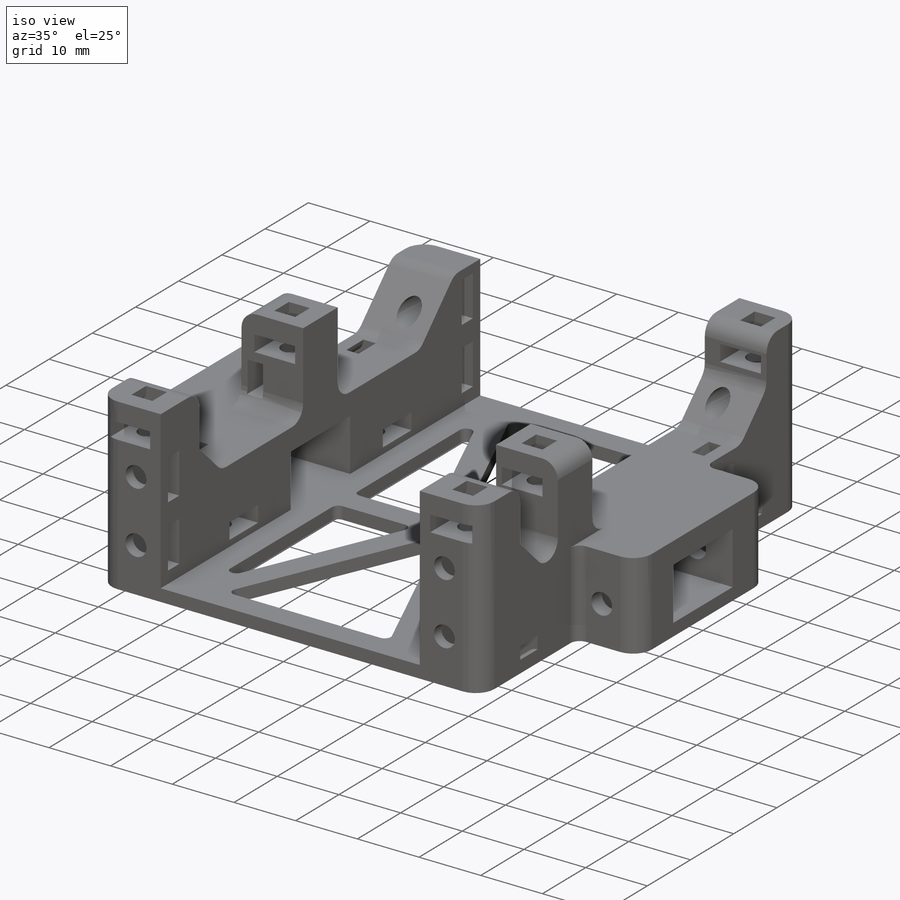
[diagram: iso view]
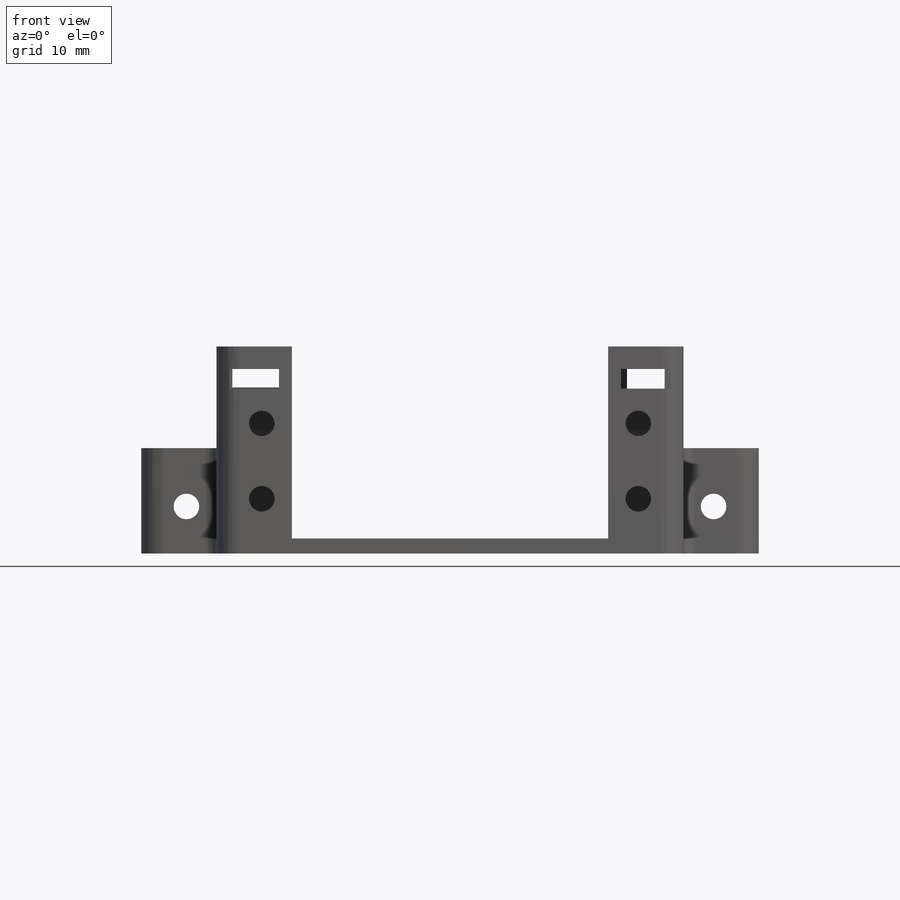
[diagram: front view]
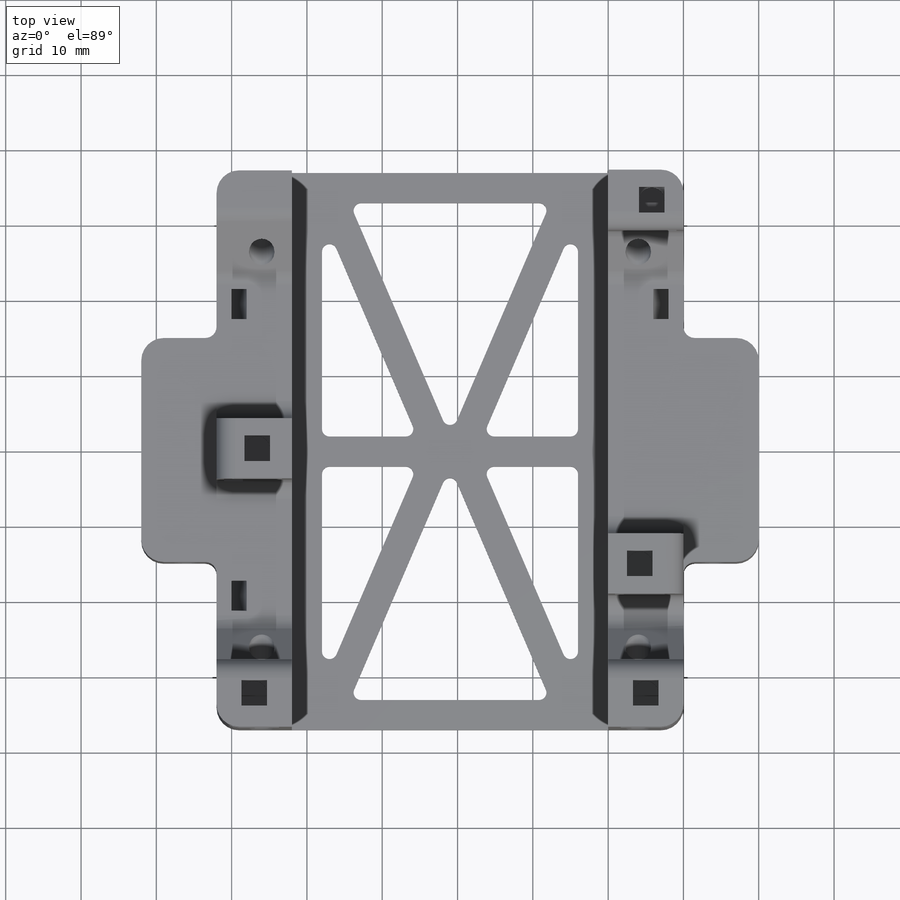
[diagram: top view]
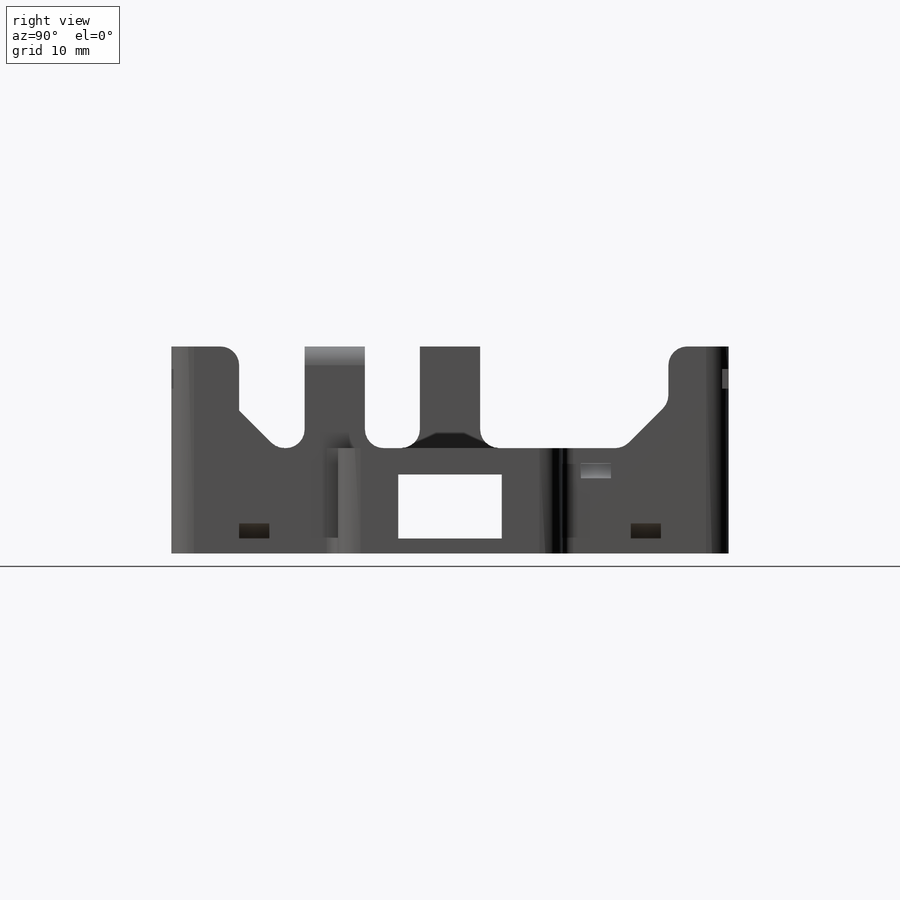
[diagram: right view]
SOLIDWORKS PART (.sldprt)
format: sldprt  version: not decoded by parser v0  size: 1,209,344 bytes
history: native  units: mm
features: sketch x29, cut_extrude x18, extrude x8, mirror x8, fillet x4, cut_revolve x3, plane x2, material x1, chamfer x1 (+11 scaffold rows collapsed)
feature tree (85):
  scaffold x11  (default folders/planes/origin — collapsed)
  material  "Material <not specified>"
  sketch  "Sketch1"  dims[D1=74.0mm D2=75.0mm]
  extrude  "Boss-Extrude1"  Depth=4mm
  plane  "Plane1"  Offset=20mm
  plane  "Plane2"  Offset=21mm
  sketch  "Sketch2"  dims[c1.D1=6.0mm c1.D2=18.0mm c1.D3=~24.456416mm c2.D3=45.0deg]
  extrude  "Boss-Extrude2"  Depth=10mm
  sketch  "Sketch4"  dims[D1=29.0mm]
  cut_extrude  "Cut-Extrude1"  Depth=2mm
  sketch  "Sketch6"  dims[D4=3.4mm D1=10.0mm D2=5.25mm D3=25.0mm]
  cut_extrude  "Cut-Extrude2"  Depth=13mm
  sketch  "Sketch8"  dims[D1=2.6mm D2=6.6mm]
  cut_extrude  "Cut-Extrude4"  Depth=8mm
  mirror  "Mirror1"
  mirror  "Mirror2"
  sketch  "Sketch9"  dims[c1.D1=3.0mm c1.D2=4.0mm c1.D3=65.5mm c2.D1=2.0mm c2.D3=23.0mm c2.D4=4.0mm]
  extrude  "Boss-Extrude3"  Depth=10mm
  sketch  "Sketch10"  dims[c1.D1=~10.593178mm c1.D2=~11.28516mm c2.D1=0.0mm c2.D2=8.0mm c2.D3=50.8mm c2.D4=15.3mm c2.D5=48.3mm c2.D6=1.6mm c2.D7=~8.399123mm c2.D8=10.0mm c3.D7=8.0mm c3.D8=10.0mm c3.D1=4.0mm c4.D7=~6.624976mm c4.D8=~12.10149mm c5.D7=~6.205438mm c5.D8=~13.387451mm c6.D7=9.2mm c6.D8=~17.68245mm c6.D9=20.0mm c7.D8=~8.336012mm c7.D9=10.0mm c8.D8=~9.346438mm c8.D9=10.0mm c9.D8=~6.824892mm c9.D9=~1.760589mm]
  extrude  "Boss-Extrude4"  Depth=27.5mm
  mirror  "Mirror3"
  mirror  "Mirror4"
  sketch  "Sketch11"  dims[D1=3.4mm]
  cut_extrude  "Cut-Extrude5"  Depth=7mm
  sketch  "Sketch12"  dims[c1.D1=~3.310971mm c1.D2=~6.206904mm c2.D1=~4.254507mm c2.D2=6.6mm c2.D3=2.6mm c3.D1=3.0mm]
  cut_extrude  "Cut-Extrude6"  Depth=5mm
  sketch  "Sketch13"  dims[c1.D1=~2.111215mm c1.D2=~5.940299mm c2.D1=3.0mm c2.D2=6.6mm c2.D3=2.6mm]
  cut_extrude  "Cut-Extrude7"  [1 undecoded]
  sketch  "Sketch14"  dims[c1.D1=~2.425053mm c1.D2=~6.715532mm c2.D1=3.0mm c2.D2=2.6mm c2.D3=6.6mm]
  cut_extrude  "Cut-Extrude8"  [1 undecoded]
  sketch  "Sketch16"  dims[c1.D1=~7.919764mm c1.D2=~21.166318mm c2.D1=~12.78061mm c3.D1=45.0deg c3.D2=~7.919764mm c4.D1=46.0mm]
  extrude  "Boss-Extrude5"  [1 undecoded]
  sketch  "Sketch17"  dims[D1=46.0mm]
  extrude  "Boss-Extrude6"  [1 undecoded]
  sketch  "Sketch15"  dims[c1.D1=~9.924067mm c1.D2=~16.540162mm c2.D1=8.5mm c2.D2=13.75mm c2.D3=2.0mm]
  cut_extrude  "Cut-Extrude9"  [1 undecoded]
  sketch  "Sketch18"  dims[c1.D1=4.0mm c1.D2=~4.855068mm c2.D1=4.0mm c2.D2=~6.440654mm]
  cut_extrude  "Cut-Extrude10"  [1 undecoded]
  sketch  "Sketch19"  dims[c1.D1=~5.44273mm c1.D2=3.4mm c2.D1=35.5mm c2.D3=4.0mm]
  cut_extrude  "Cut-Extrude11"  Depth=8mm
  sketch  "Sketch20"  dims[c1.D1=~2.950282mm c1.D2=~6.787382mm c2.D1=2.6mm c2.D2=6.6mm c2.D3=1.0mm]
  cut_extrude  "Cut-Extrude12"  Depth=8mm
  sketch  "Sketch21"  dims[c1.D1=8.25mm c1.D2=13.0mm c2.D1=8.0mm]
  extrude  "Boss-Extrude7"  Depth=10mm
  sketch  "Sketch23"  dims[D1=3.4mm D2=4.0mm]
  cut_extrude  "Cut-Extrude14"  [1 undecoded]
  sketch  "Sketch22"  dims[c1.D1=~2.143704mm c1.D2=~6.431111mm c2.D1=7.0mm c2.D2=3.0mm c2.D3=~0.032417mm]
  cut_extrude  "Cut-Extrude13"  Depth=11mm
  mirror  "Mirror5"
  sketch  "Sketch24"  dims[D1=4.0mm D2=4.0mm D3=4.0mm D4=2.0mm]
  cut_extrude  "Cut-Extrude15"  [1 undecoded]
  sketch  "Sketch25"  dims[c1.D1=~8.319673mm c1.D2=10.0mm c2.D1=9.0mm]
  extrude  "Boss-Extrude8"  [1 undecoded]
  sketch  "Sketch26"  dims[c1.D1=~2.654916mm c1.D2=~5.514055mm c2.D1=3.0mm c2.D2=2.6mm c2.D3=6.6mm]
  cut_extrude  "Cut-Extrude16"  [1 undecoded]
  sketch  "Sketch27"  dims[D1=3.4mm]
  cut_extrude  "Cut-Extrude17"  Depth=7mm
  mirror  "Mirror6"
  sketch  "Sketch29"  dims[c1.D1=~3.700422mm c2.D1=90.0deg c3.D1=5.0mm c3.D2=2.5mm c3.D3=1.0mm c3.D4=1.5mm]
  cut_extrude  "Cut-Extrude19"  [1 undecoded]
  fillet  "Fillet1"  Radius=1mm
  fillet  "Fillet2"  Radius=3mm
  fillet  "Fillet3"  Radius=1.5mm
  fillet  "Fillet4"  Radius=2.5mm
  sketch  "Sketch28"  dims[D1=3.2mm]
  cut_extrude  "Cut-Extrude18"  [1 undecoded]
  chamfer  "Chamfer1"  Distance=1.6mm Angle=45deg
  sketch  "Sketch30"  dims[D1=2.0mm D2=9.0mm D3=2.0mm D4=4.0mm D5=~4.496152mm]
  cut_revolve  "Cut-Revolve1"  Angle=360deg
  sketch  "Sketch31"  dims[D1=2.0mm D2=4.0mm D3=4.5mm D4=2.0mm]
  cut_revolve  "Cut-Revolve2"  Angle=360deg
  sketch  "Sketch33"  dims[D1=4.0mm D2=2.0mm D3=2.0mm D4=4.5mm]
  cut_revolve  "Cut-Revolve3"  Angle=360deg
  mirror  "Mirror7"
  mirror  "Mirror8"
decode coverage: 51 of 71 modeling features carry decoded parameters
note: ~ marks probable driven/reference dimensions
note: 12 parameter values undecoded
summary: no parameter record found for 12 features
note: suppression state not decoded; provenance and decode notes live in map.json
